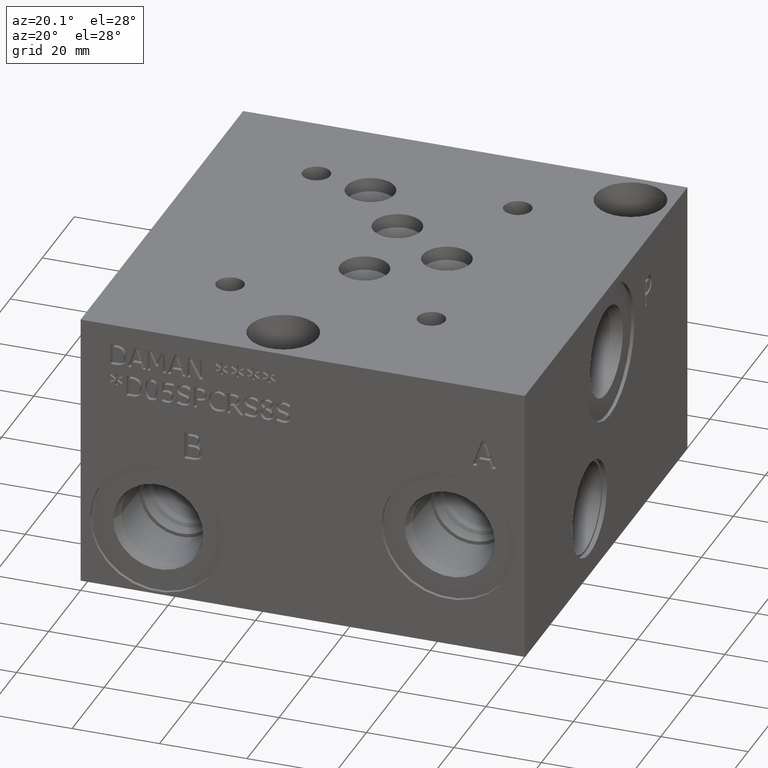
[diagram: clean part render]
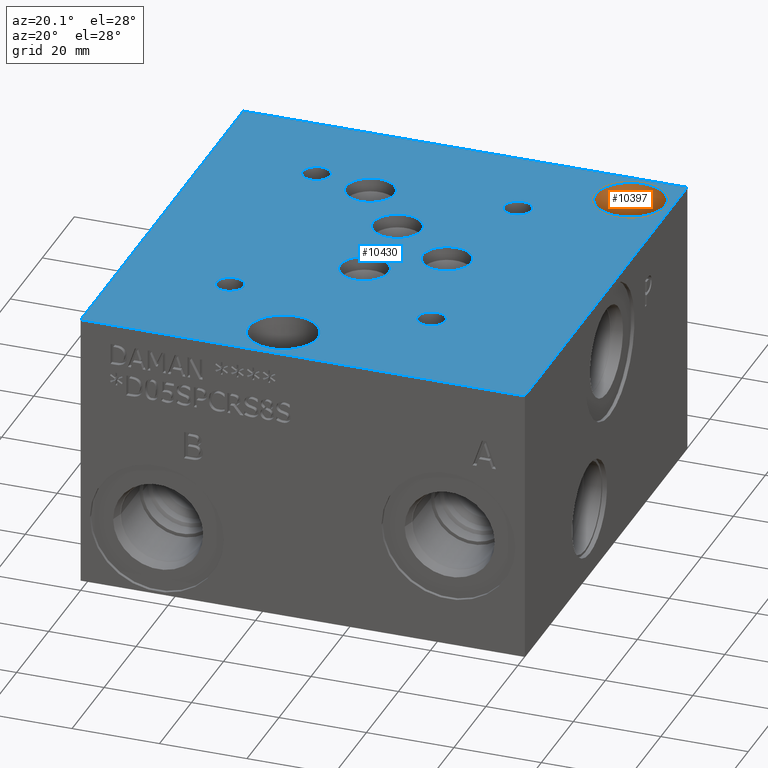
[diagram: same view with the hole feature highlighted: cylindrical wall and planar end face, labeled with their STEP entity ids]
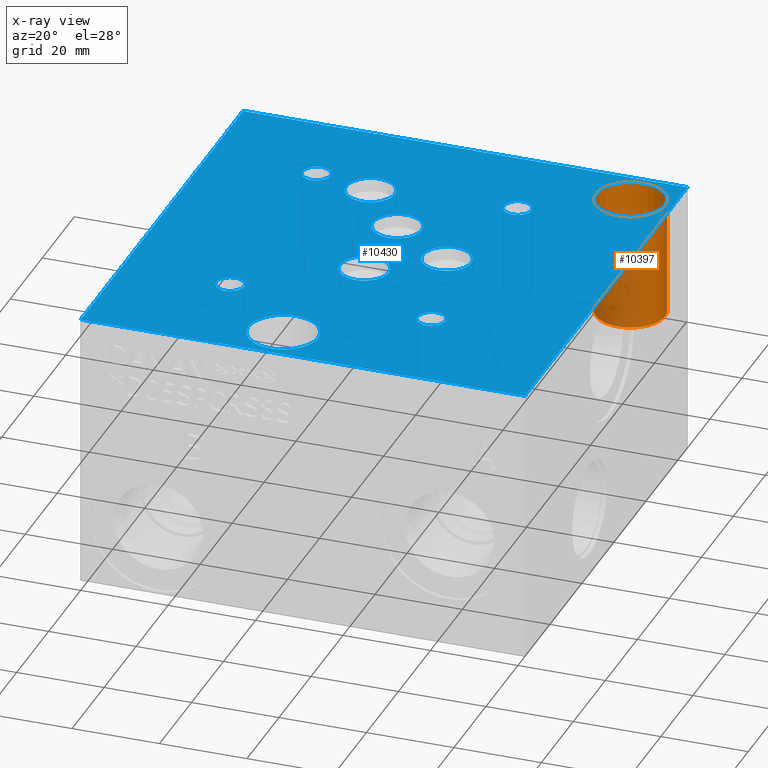
[diagram: x-ray of the same camera — body ghosted, the hole faces saturated]
A machine part, auxiliary view. The highlighted faces form one hole feature of diameter 15.875 mm: the cylindrical wall (entity #10397, orange) and its adjacent planar end face (entity #10430, blue) — they share a circular edge in the B-rep.
The next image is the same camera in x-ray (body ghosted, the hole faces saturated) — the bore reads through the body.
Wall:
#80=CYLINDRICAL_SURFACE('',#10918,7.9375);
#227=CIRCLE('',#10915,7.9375);
#228=CIRCLE('',#10916,7.9375);
#230=CIRCLE('',#10919,7.9375);
#231=CIRCLE('',#10920,7.9375);
#1148=FACE_OUTER_BOUND('',#1737,.T.);
#1737=EDGE_LOOP('',(#9124,#9125,#9126,#9127,#9128,#9129));
#2702=LINE('',#17955,#3641);
#3641=VECTOR('',#12868,7.9375);
#4913=VERTEX_POINT('',#17944);
#4914=VERTEX_POINT('',#17945);
#4916=VERTEX_POINT('',#17951);
#4917=VERTEX_POINT('',#17952);
#6342=EDGE_CURVE('',#4913,#4914,#227,.T.);
#6343=EDGE_CURVE('',#4914,#4913,#228,.T.);
#6345=EDGE_CURVE('',#4916,#4917,#230,.T.);
#6346=EDGE_CURVE('',#4917,#4916,#231,.T.);
#6347=EDGE_CURVE('',#4917,#4914,#2702,.T.);
#9124=ORIENTED_EDGE('',*,*,#6345,.F.);
#9125=ORIENTED_EDGE('',*,*,#6346,.F.);
#9126=ORIENTED_EDGE('',*,*,#6347,.T.);
#9127=ORIENTED_EDGE('',*,*,#6342,.F.);
#9128=ORIENTED_EDGE('',*,*,#6343,.F.);
#9129=ORIENTED_EDGE('',*,*,#6347,.F.);
#10397=ADVANCED_FACE('',(#1148),#80,.F.);
#10915=AXIS2_PLACEMENT_3D('',#17946,#12856,#12857);
#10916=AXIS2_PLACEMENT_3D('',#17947,#12858,#12859);
#10918=AXIS2_PLACEMENT_3D('',#17950,#12862,#12863);
#10919=AXIS2_PLACEMENT_3D('',#17953,#12864,#12865);
#10920=AXIS2_PLACEMENT_3D('',#17954,#12866,#12867);
#12856=DIRECTION('center_axis',(0.,0.,1.));
#12857=DIRECTION('ref_axis',(1.,0.,0.));
#12858=DIRECTION('center_axis',(0.,0.,1.));
#12859=DIRECTION('ref_axis',(1.,0.,0.));
#12862=DIRECTION('center_axis',(0.,0.,1.));
#12863=DIRECTION('ref_axis',(1.,0.,0.));
#12864=DIRECTION('center_axis',(0.,0.,-1.));
#12865=DIRECTION('ref_axis',(1.,0.,0.));
#12866=DIRECTION('center_axis',(0.,0.,-1.));
#12867=DIRECTION('ref_axis',(1.,0.,0.));
#12868=DIRECTION('',(0.,0.,-1.));
#17944=CARTESIAN_POINT('',(100.0125,92.075,36.576));
#17945=CARTESIAN_POINT('',(84.1375,92.075,36.576));
#17946=CARTESIAN_POINT('Origin',(92.075,92.075,36.576));
#17947=CARTESIAN_POINT('Origin',(92.075,92.075,36.576));
#17950=CARTESIAN_POINT('Origin',(92.075,92.075,50.038));
#17951=CARTESIAN_POINT('',(100.0125,92.075,63.5));
#17952=CARTESIAN_POINT('',(84.1375,92.075,63.5));
#17953=CARTESIAN_POINT('Origin',(92.075,92.075,63.5));
#17954=CARTESIAN_POINT('Origin',(92.075,92.075,63.5));
#17955=CARTESIAN_POINT('',(84.1375,92.075,50.038));
End face:
#230=CIRCLE('',#10919,7.9375);
#231=CIRCLE('',#10920,7.9375);
#236=CIRCLE('',#10928,7.9375);
#237=CIRCLE('',#10929,7.9375);
#241=CIRCLE('',#10936,5.5626);
#242=CIRCLE('',#10937,5.5626);
#245=CIRCLE('',#10942,5.5626);
#246=CIRCLE('',#10943,5.5626);
#249=CIRCLE('',#10948,5.5626);
#250=CIRCLE('',#10949,5.5626);
#253=CIRCLE('',#10954,5.5626);
#254=CIRCLE('',#10955,5.5626);
#260=CIRCLE('',#10964,3.175);
#261=CIRCLE('',#10965,3.175);
#267=CIRCLE('',#10975,3.175);
#268=CIRCLE('',#10976,3.175);
#274=CIRCLE('',#10986,3.175);
#275=CIRCLE('',#10987,3.175);
#281=CIRCLE('',#10997,3.175);
#282=CIRCLE('',#10998,3.175);
#346=FACE_BOUND('',#1779,.T.);
#347=FACE_BOUND('',#1780,.T.);
#348=FACE_BOUND('',#1781,.T.);
#349=FACE_BOUND('',#1782,.T.);
#350=FACE_BOUND('',#1783,.T.);
#351=FACE_BOUND('',#1784,.T.);
#352=FACE_BOUND('',#1785,.T.);
#353=FACE_BOUND('',#1786,.T.);
#354=FACE_BOUND('',#1787,.T.);
#355=FACE_BOUND('',#1788,.T.);
#647=PLANE('',#11004);
#1181=FACE_OUTER_BOUND('',#1778,.T.);
#1778=EDGE_LOOP('',(#9293,#9294,#9295,#9296));
#1779=EDGE_LOOP('',(#9297,#9298));
#1780=EDGE_LOOP('',(#9299,#9300));
#1781=EDGE_LOOP('',(#9301,#9302));
#1782=EDGE_LOOP('',(#9303,#9304));
#1783=EDGE_LOOP('',(#9305,#9306));
#1784=EDGE_LOOP('',(#9307,#9308));
#1785=EDGE_LOOP('',(#9309,#9310));
#1786=EDGE_LOOP('',(#9311,#9312));
#1787=EDGE_LOOP('',(#9313,#9314));
#1788=EDGE_LOOP('',(#9315,#9316));
#2129=LINE('',#15983,#3068);
#2619=LINE('',#17503,#3558);
#2727=LINE('',#18121,#3666);
#2730=LINE('',#18125,#3669);
#3068=VECTOR('',#11505,10.);
#3558=VECTOR('',#12355,10.);
#3666=VECTOR('',#13053,10.);
#3669=VECTOR('',#13058,10.);
#4392=VERTEX_POINT('',#15980);
#4393=VERTEX_POINT('',#15982);
#4763=VERTEX_POINT('',#17501);
#4916=VERTEX_POINT('',#17951);
#4917=VERTEX_POINT('',#17952);
#4922=VERTEX_POINT('',#17968);
#4923=VERTEX_POINT('',#17969);
#4928=VERTEX_POINT('',#17985);
#4929=VERTEX_POINT('',#17986);
#4933=VERTEX_POINT('',#17998);
#4934=VERTEX_POINT('',#17999);
#4938=VERTEX_POINT('',#18011);
#4939=VERTEX_POINT('',#18012);
#4943=VERTEX_POINT('',#18024);
#4944=VERTEX_POINT('',#18025);
#4951=VERTEX_POINT('',#18044);
#4952=VERTEX_POINT('',#18045);
#4959=VERTEX_POINT('',#18066);
#4960=VERTEX_POINT('',#18067);
#4967=VERTEX_POINT('',#18088);
#4968=VERTEX_POINT('',#18089);
#4975=VERTEX_POINT('',#18110);
#4976=VERTEX_POINT('',#18111);
#4978=VERTEX_POINT('',#18120);
#5578=EDGE_CURVE('',#4393,#4392,#2129,.T.);
#6132=EDGE_CURVE('',#4392,#4763,#2619,.T.);
#6345=EDGE_CURVE('',#4916,#4917,#230,.T.);
#6346=EDGE_CURVE('',#4917,#4916,#231,.T.);
#6353=EDGE_CURVE('',#4922,#4923,#236,.T.);
#6354=EDGE_CURVE('',#4923,#4922,#237,.T.);
#6361=EDGE_CURVE('',#4928,#4929,#241,.T.);
#6362=EDGE_CURVE('',#4929,#4928,#242,.T.);
#6367=EDGE_CURVE('',#4933,#4934,#245,.T.);
#6368=EDGE_CURVE('',#4934,#4933,#246,.T.);
#6373=EDGE_CURVE('',#4938,#4939,#249,.T.);
#6374=EDGE_CURVE('',#4939,#4938,#250,.T.);
#6379=EDGE_CURVE('',#4943,#4944,#253,.T.);
#6380=EDGE_CURVE('',#4944,#4943,#254,.T.);
#6388=EDGE_CURVE('',#4951,#4952,#260,.T.);
#6389=EDGE_CURVE('',#4952,#4951,#261,.T.);
#6398=EDGE_CURVE('',#4959,#4960,#267,.T.);
#6399=EDGE_CURVE('',#4960,#4959,#268,.T.);
#6408=EDGE_CURVE('',#4967,#4968,#274,.T.);
#6409=EDGE_CURVE('',#4968,#4967,#275,.T.);
#6418=EDGE_CURVE('',#4975,#4976,#281,.T.);
#6419=EDGE_CURVE('',#4976,#4975,#282,.T.);
#6423=EDGE_CURVE('',#4978,#4393,#2727,.T.);
#6426=EDGE_CURVE('',#4763,#4978,#2730,.T.);
#9293=ORIENTED_EDGE('',*,*,#5578,.T.);
#9294=ORIENTED_EDGE('',*,*,#6132,.T.);
#9295=ORIENTED_EDGE('',*,*,#6426,.T.);
#9296=ORIENTED_EDGE('',*,*,#6423,.T.);
#9297=ORIENTED_EDGE('',*,*,#6345,.T.);
#9298=ORIENTED_EDGE('',*,*,#6346,.T.);
#9299=ORIENTED_EDGE('',*,*,#6353,.T.);
#9300=ORIENTED_EDGE('',*,*,#6354,.T.);
#9301=ORIENTED_EDGE('',*,*,#6361,.T.);
#9302=ORIENTED_EDGE('',*,*,#6362,.T.);
#9303=ORIENTED_EDGE('',*,*,#6367,.T.);
#9304=ORIENTED_EDGE('',*,*,#6368,.T.);
#9305=ORIENTED_EDGE('',*,*,#6373,.T.);
#9306=ORIENTED_EDGE('',*,*,#6374,.T.);
#9307=ORIENTED_EDGE('',*,*,#6379,.T.);
#9308=ORIENTED_EDGE('',*,*,#6380,.T.);
#9309=ORIENTED_EDGE('',*,*,#6388,.T.);
#9310=ORIENTED_EDGE('',*,*,#6389,.T.);
#9311=ORIENTED_EDGE('',*,*,#6398,.T.);
#9312=ORIENTED_EDGE('',*,*,#6399,.T.);
#9313=ORIENTED_EDGE('',*,*,#6408,.T.);
#9314=ORIENTED_EDGE('',*,*,#6409,.T.);
#9315=ORIENTED_EDGE('',*,*,#6418,.T.);
#9316=ORIENTED_EDGE('',*,*,#6419,.T.);
#10430=ADVANCED_FACE('',(#1181,#346,#347,#348,#349,#350,#351,#352,#353,
#354,#355),#647,.T.);
#10919=AXIS2_PLACEMENT_3D('',#17953,#12864,#12865);
#10920=AXIS2_PLACEMENT_3D('',#17954,#12866,#12867);
#10928=AXIS2_PLACEMENT_3D('',#17970,#12884,#12885);
#10929=AXIS2_PLACEMENT_3D('',#17971,#12886,#12887);
#10936=AXIS2_PLACEMENT_3D('',#17987,#12903,#12904);
#10937=AXIS2_PLACEMENT_3D('',#17988,#12905,#12906);
#10942=AXIS2_PLACEMENT_3D('',#18000,#12917,#12918);
#10943=AXIS2_PLACEMENT_3D('',#18001,#12919,#12920);
#10948=AXIS2_PLACEMENT_3D('',#18013,#12931,#12932);
#10949=AXIS2_PLACEMENT_3D('',#18014,#12933,#12934);
#10954=AXIS2_PLACEMENT_3D('',#18026,#12945,#12946);
#10955=AXIS2_PLACEMENT_3D('',#18027,#12947,#12948);
#10964=AXIS2_PLACEMENT_3D('',#18046,#12967,#12968);
#10965=AXIS2_PLACEMENT_3D('',#18047,#12969,#12970);
#10975=AXIS2_PLACEMENT_3D('',#18068,#12992,#12993);
#10976=AXIS2_PLACEMENT_3D('',#18069,#12994,#12995);
#10986=AXIS2_PLACEMENT_3D('',#18090,#13017,#13018);
#10987=AXIS2_PLACEMENT_3D('',#18091,#13019,#13020);
#10997=AXIS2_PLACEMENT_3D('',#18112,#13042,#13043);
#10998=AXIS2_PLACEMENT_3D('',#18113,#13044,#13045);
#11004=AXIS2_PLACEMENT_3D('',#18128,#13063,#13064);
#11505=DIRECTION('',(1.,0.,0.));
#12355=DIRECTION('',(0.,1.,0.));
#12864=DIRECTION('center_axis',(0.,0.,-1.));
#12865=DIRECTION('ref_axis',(1.,0.,0.));
#12866=DIRECTION('center_axis',(0.,0.,-1.));
#12867=DIRECTION('ref_axis',(1.,0.,0.));
#12884=DIRECTION('center_axis',(0.,0.,-1.));
#12885=DIRECTION('ref_axis',(1.,0.,0.));
#12886=DIRECTION('center_axis',(0.,0.,-1.));
#12887=DIRECTION('ref_axis',(1.,0.,0.));
#12903=DIRECTION('center_axis',(0.,0.,-1.));
#12904=DIRECTION('ref_axis',(1.,0.,0.));
#12905=DIRECTION('center_axis',(0.,0.,-1.));
#12906=DIRECTION('ref_axis',(1.,0.,0.));
#12917=DIRECTION('center_axis',(0.,0.,-1.));
#12918=DIRECTION('ref_axis',(1.,0.,0.));
#12919=DIRECTION('center_axis',(0.,0.,-1.));
#12920=DIRECTION('ref_axis',(1.,0.,0.));
#12931=DIRECTION('center_axis',(0.,0.,-1.));
#12932=DIRECTION('ref_axis',(1.,0.,0.));
#12933=DIRECTION('center_axis',(0.,0.,-1.));
#12934=DIRECTION('ref_axis',(1.,0.,0.));
#12945=DIRECTION('center_axis',(0.,0.,-1.));
#12946=DIRECTION('ref_axis',(1.,0.,0.));
#12947=DIRECTION('center_axis',(0.,0.,-1.));
#12948=DIRECTION('ref_axis',(1.,0.,0.));
#12967=DIRECTION('center_axis',(0.,0.,-1.));
#12968=DIRECTION('ref_axis',(1.,0.,0.));
#12969=DIRECTION('center_axis',(0.,0.,-1.));
#12970=DIRECTION('ref_axis',(1.,0.,0.));
#12992=DIRECTION('center_axis',(0.,0.,-1.));
#12993=DIRECTION('ref_axis',(1.,0.,0.));
#12994=DIRECTION('center_axis',(0.,0.,-1.));
#12995=DIRECTION('ref_axis',(1.,0.,0.));
#13017=DIRECTION('center_axis',(0.,0.,-1.));
#13018=DIRECTION('ref_axis',(1.,0.,0.));
#13019=DIRECTION('center_axis',(0.,0.,-1.));
#13020=DIRECTION('ref_axis',(1.,0.,0.));
#13042=DIRECTION('center_axis',(0.,0.,-1.));
#13043=DIRECTION('ref_axis',(1.,0.,0.));
#13044=DIRECTION('center_axis',(0.,0.,-1.));
#13045=DIRECTION('ref_axis',(1.,0.,0.));
#13053=DIRECTION('',(0.,-1.,0.));
#13058=DIRECTION('',(-1.,0.,0.));
#13063=DIRECTION('center_axis',(0.,0.,1.));
#13064=DIRECTION('ref_axis',(1.,0.,0.));
#15980=CARTESIAN_POINT('',(101.6,0.,63.5));
#15982=CARTESIAN_POINT('',(0.,0.,63.5));
#15983=CARTESIAN_POINT('',(0.,0.,63.5));
#17501=CARTESIAN_POINT('',(101.6,101.6,63.5));
#17503=CARTESIAN_POINT('',(101.6,0.,63.5));
#17951=CARTESIAN_POINT('',(100.0125,92.075,63.5));
#17952=CARTESIAN_POINT('',(84.1375,92.075,63.5));
#17953=CARTESIAN_POINT('Origin',(92.075,92.075,63.5));
#17954=CARTESIAN_POINT('Origin',(92.075,92.075,63.5));
#17968=CARTESIAN_POINT('',(50.8127,9.525,63.5));
#17969=CARTESIAN_POINT('',(34.9377,9.525,63.5));
#17970=CARTESIAN_POINT('Origin',(42.8752,9.525,63.5));
#17971=CARTESIAN_POINT('Origin',(42.8752,9.525,63.5));
#17985=CARTESIAN_POINT('',(54.8005,63.47968,63.5));
#17986=CARTESIAN_POINT('',(43.6753,63.47968,63.5));
#17987=CARTESIAN_POINT('Origin',(49.2379,63.47968,63.5));
#17988=CARTESIAN_POINT('Origin',(49.2379,63.47968,63.5));
#17998=CARTESIAN_POINT('',(69.9008,53.1622,63.5));
#17999=CARTESIAN_POINT('',(58.7756,53.1622,63.5));
#18000=CARTESIAN_POINT('Origin',(64.3382,53.1622,63.5));
#18001=CARTESIAN_POINT('Origin',(64.3382,53.1622,63.5));
#18011=CARTESIAN_POINT('',(43.688,76.9874,63.5));
#18012=CARTESIAN_POINT('',(32.5628,76.9874,63.5));
#18013=CARTESIAN_POINT('Origin',(38.1254,76.9874,63.5));
#18014=CARTESIAN_POINT('Origin',(38.1254,76.9874,63.5));
#18024=CARTESIAN_POINT('',(54.80558,42.84472,63.5));
#18025=CARTESIAN_POINT('',(43.68038,42.84472,63.5));
#18026=CARTESIAN_POINT('Origin',(49.24298,42.84472,63.5));
#18027=CARTESIAN_POINT('Origin',(49.24298,42.84472,63.5));
#18044=CARTESIAN_POINT('',(73.8378,26.2001,63.5));
#18045=CARTESIAN_POINT('',(67.4878,26.2001,63.5));
#18046=CARTESIAN_POINT('Origin',(70.6628,26.2001,63.5));
#18047=CARTESIAN_POINT('Origin',(70.6628,26.2001,63.5));
#18066=CARTESIAN_POINT('',(27.7876,80.1624,63.5));
#18067=CARTESIAN_POINT('',(21.4376,80.1624,63.5));
#18068=CARTESIAN_POINT('Origin',(24.6126,80.1624,63.5));
#18069=CARTESIAN_POINT('Origin',(24.6126,80.1624,63.5));
#18088=CARTESIAN_POINT('',(73.8378,80.1624,63.5));
#18089=CARTESIAN_POINT('',(67.4878,80.1624,63.5));
#18090=CARTESIAN_POINT('Origin',(70.6628,80.1624,63.5));
#18091=CARTESIAN_POINT('Origin',(70.6628,80.1624,63.5));
#18110=CARTESIAN_POINT('',(27.7876,26.1874,63.5));
#18111=CARTESIAN_POINT('',(21.4376,26.1874,63.5));
#18112=CARTESIAN_POINT('Origin',(24.6126,26.1874,63.5));
#18113=CARTESIAN_POINT('Origin',(24.6126,26.1874,63.5));
#18120=CARTESIAN_POINT('',(0.,101.6,63.5));
#18121=CARTESIAN_POINT('',(0.,101.6,63.5));
#18125=CARTESIAN_POINT('',(101.6,101.6,63.5));
#18128=CARTESIAN_POINT('Origin',(50.8,50.8,63.5));